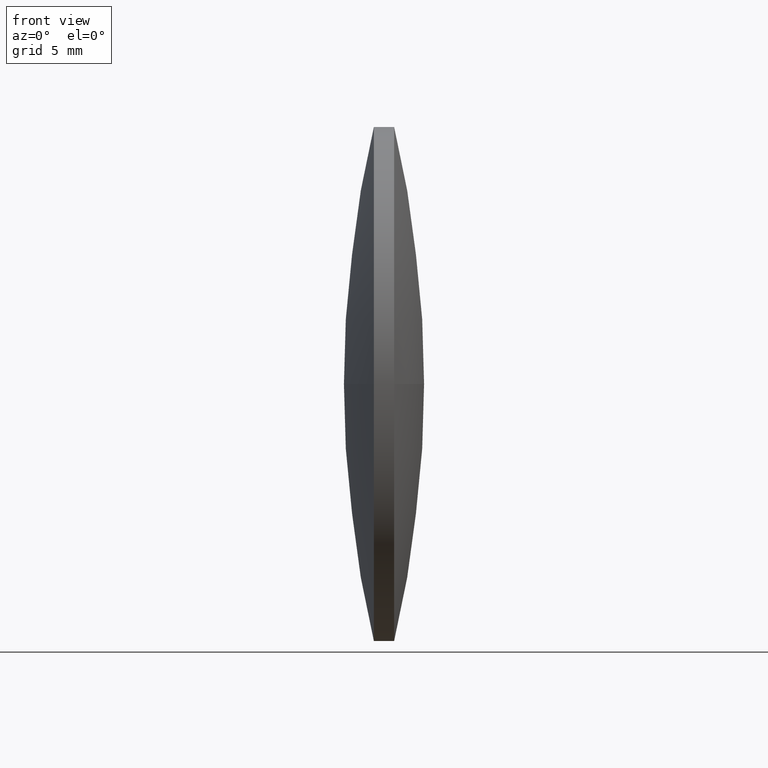
[diagram: clean part render]
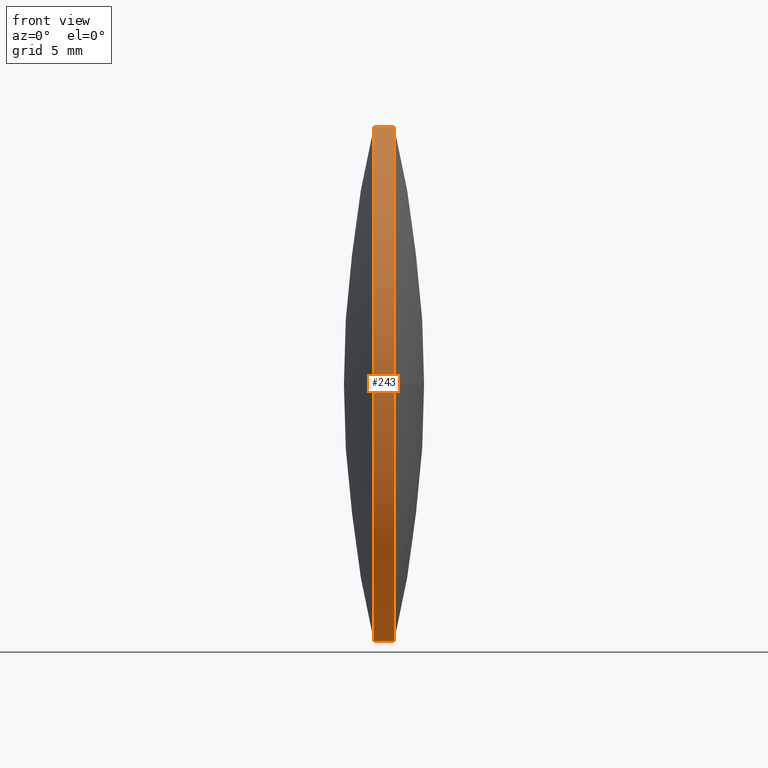
[diagram: same view with one face highlighted and labeled with its STEP entity id]
A machine part, front view. The second image highlights one B-rep face of the part: STEP entity #243.
In plain terms, the highlighted cylindrical surface (partial cylindrical patch) has radius 12.7 mm, axis along (-1, -0, -0).
Its self-contained STEP definition (entity closure, byte-faithful):
#16 = CARTESIAN_POINT ( 'NONE',  ( 79.30540135083715800, 48.61611302318478100, 12.69999999999999600 ) ) ;
#27 = AXIS2_PLACEMENT_3D ( 'NONE', #192, #32, #114 ) ;
#32 = DIRECTION ( 'NONE',  ( -1.000000000000000000, -0.0000000000000000000, -0.0000000000000000000 ) ) ;
#40 = CARTESIAN_POINT ( 'NONE',  ( 85.95819477466253000, 48.61611302318478100, 0.0000000000000000000 ) ) ;
#45 = ORIENTED_EDGE ( 'NONE', *, *, #298, .F. ) ;
#57 = DIRECTION ( 'NONE',  ( 0.0000000000000000000, 0.0000000000000000000, 1.000000000000000000 ) ) ;
#59 = VERTEX_POINT ( 'NONE', #160 ) ;
#66 = AXIS2_PLACEMENT_3D ( 'NONE', #296, #139, #57 ) ;
#68 = EDGE_CURVE ( 'NONE', #295, #185, #208, .T. ) ;
#69 = CARTESIAN_POINT ( 'NONE',  ( 86.95819277466255000, 48.61611302318478100, -12.69999999999999600 ) ) ;
#71 = VERTEX_POINT ( 'NONE', #318 ) ;
#83 = CARTESIAN_POINT ( 'NONE',  ( 79.30540135083715800, 48.61611302318478100, -12.69999999999999600 ) ) ;
#85 = DIRECTION ( 'NONE',  ( -1.000000000000000000, -0.0000000000000000000, -0.0000000000000000000 ) ) ;
#108 = FACE_OUTER_BOUND ( 'NONE', #341, .T. ) ;
#114 = DIRECTION ( 'NONE',  ( 0.0000000000000000000, 0.0000000000000000000, 1.000000000000000000 ) ) ;
#115 = ORIENTED_EDGE ( 'NONE', *, *, #211, .F. ) ;
#120 = DIRECTION ( 'NONE',  ( -1.000000000000000000, -0.0000000000000000000, -0.0000000000000000000 ) ) ;
#139 = DIRECTION ( 'NONE',  ( -1.000000000000000000, -0.0000000000000000000, -0.0000000000000000000 ) ) ;
#160 = CARTESIAN_POINT ( 'NONE',  ( 85.95819477466253000, 48.61611302318478100, 12.69999999999999600 ) ) ;
#161 = CYLINDRICAL_SURFACE ( 'NONE', #181, 12.69999999999999600 ) ;
#162 = CARTESIAN_POINT ( 'NONE',  ( 85.95819477466253000, 35.91611302318475700, -1.555301434917134100E-015 ) ) ;
#163 = ORIENTED_EDGE ( 'NONE', *, *, #328, .T. ) ;
#166 = CARTESIAN_POINT ( 'NONE',  ( 86.95819277466255000, 48.61611302318478100, 12.69999999999999600 ) ) ;
#178 = ORIENTED_EDGE ( 'NONE', *, *, #266, .T. ) ;
#181 = AXIS2_PLACEMENT_3D ( 'NONE', #254, #85, #273 ) ;
#182 = ORIENTED_EDGE ( 'NONE', *, *, #286, .T. ) ;
#185 = VERTEX_POINT ( 'NONE', #196 ) ;
#192 = CARTESIAN_POINT ( 'NONE',  ( 86.95819277466255000, 48.61611302318478100, 0.0000000000000000000 ) ) ;
#193 = ORIENTED_EDGE ( 'NONE', *, *, #68, .F. ) ;
#196 = CARTESIAN_POINT ( 'NONE',  ( 85.95819477466253000, 48.61611302318478100, -12.69999999999999600 ) ) ;
#200 = VERTEX_POINT ( 'NONE', #162 ) ;
#208 = LINE ( 'NONE', #83, #231 ) ;
#211 = EDGE_CURVE ( 'NONE', #200, #59, #248, .T. ) ;
#216 = CIRCLE ( 'NONE', #66, 12.69999999999999600 ) ;
#222 = CARTESIAN_POINT ( 'NONE',  ( 85.95819477466253000, 48.61611302318478100, 0.0000000000000000000 ) ) ;
#224 = DIRECTION ( 'NONE',  ( -1.000000000000000000, -0.0000000000000000000, -0.0000000000000000000 ) ) ;
#231 = VECTOR ( 'NONE', #345, 1000.000000000000000 ) ;
#232 = DIRECTION ( 'NONE',  ( -1.000000000000000000, -0.0000000000000000000, -0.0000000000000000000 ) ) ;
#237 = CIRCLE ( 'NONE', #339, 12.69999999999999600 ) ;
#243 = ADVANCED_FACE ( 'NONE', ( #108 ), #161, .T. ) ;
#248 = CIRCLE ( 'NONE', #344, 12.69999999999999600 ) ;
#254 = CARTESIAN_POINT ( 'NONE',  ( 79.30540135083715800, 48.61611302318478100, 0.0000000000000000000 ) ) ;
#260 = DIRECTION ( 'NONE',  ( 0.0000000000000000000, 0.0000000000000000000, 1.000000000000000000 ) ) ;
#266 = EDGE_CURVE ( 'NONE', #71, #321, #216, .T. ) ;
#273 = DIRECTION ( 'NONE',  ( 0.0000000000000000000, 0.0000000000000000000, 1.000000000000000000 ) ) ;
#286 = EDGE_CURVE ( 'NONE', #295, #71, #301, .T. ) ;
#294 = LINE ( 'NONE', #16, #323 ) ;
#295 = VERTEX_POINT ( 'NONE', #69 ) ;
#296 = CARTESIAN_POINT ( 'NONE',  ( 86.95819277466255000, 48.61611302318478100, 0.0000000000000000000 ) ) ;
#298 = EDGE_CURVE ( 'NONE', #185, #200, #237, .T. ) ;
#301 = CIRCLE ( 'NONE', #27, 12.69999999999999600 ) ;
#318 = CARTESIAN_POINT ( 'NONE',  ( 86.95819277466255000, 35.91611302318479900, 0.0000000000000000000 ) ) ;
#321 = VERTEX_POINT ( 'NONE', #166 ) ;
#323 = VECTOR ( 'NONE', #232, 1000.000000000000000 ) ;
#325 = DIRECTION ( 'NONE',  ( 0.0000000000000000000, 0.0000000000000000000, 1.000000000000000000 ) ) ;
#328 = EDGE_CURVE ( 'NONE', #321, #59, #294, .T. ) ;
#339 = AXIS2_PLACEMENT_3D ( 'NONE', #40, #120, #260 ) ;
#341 = EDGE_LOOP ( 'NONE', ( #193, #182, #178, #163, #115, #45 ) ) ;
#344 = AXIS2_PLACEMENT_3D ( 'NONE', #222, #224, #325 ) ;
#345 = DIRECTION ( 'NONE',  ( -1.000000000000000000, -0.0000000000000000000, -0.0000000000000000000 ) ) ;